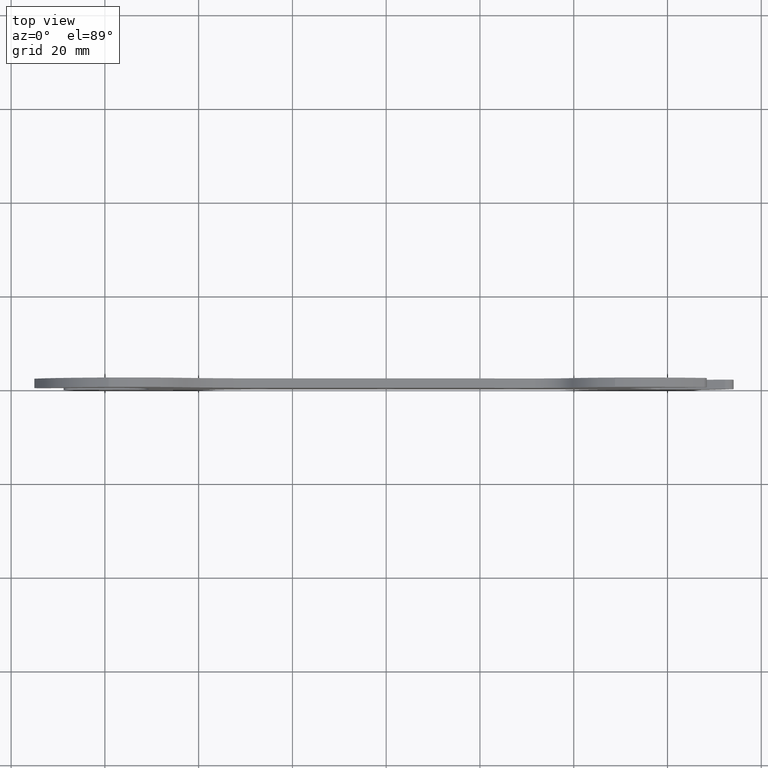
[diagram: clean part render]
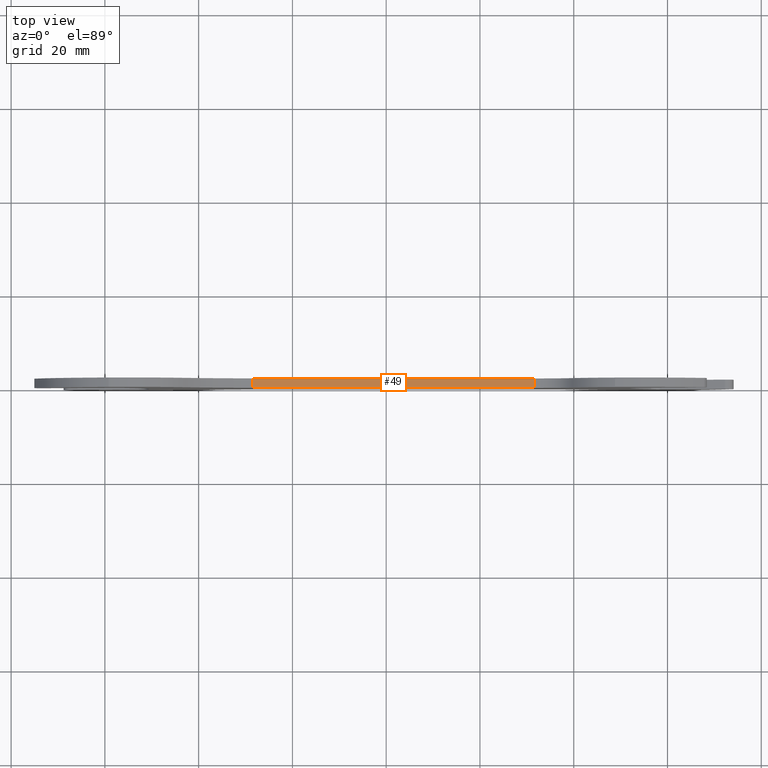
[diagram: same view with one face highlighted and labeled with its STEP entity id]
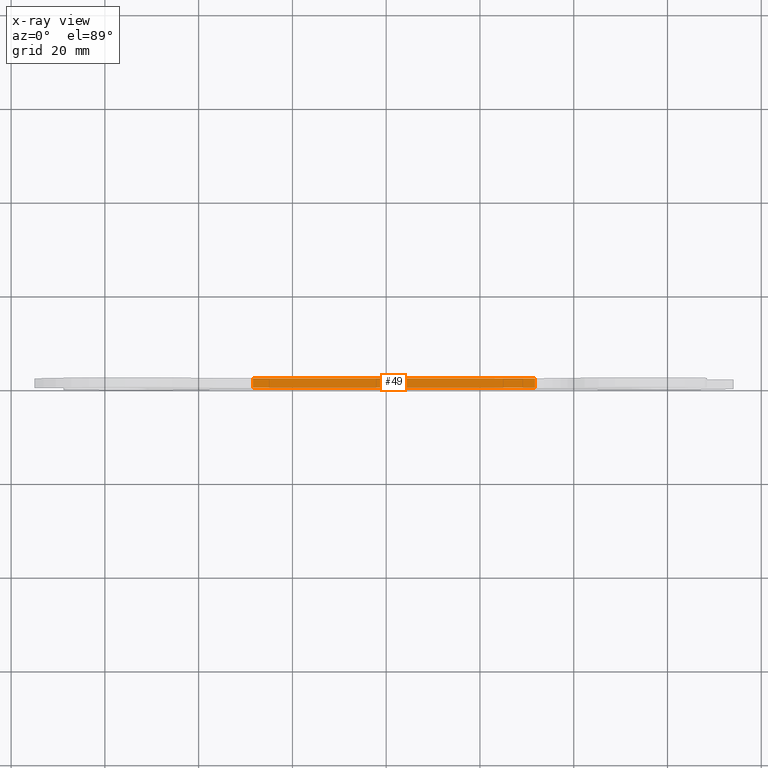
[diagram: x-ray of the same camera — body ghosted, the highlighted face saturated]
A machine part, top view. The second image highlights one B-rep face of the part: STEP entity #49.
The next image is the same camera in x-ray: the body ghosted, the highlighted face saturated — about 0% of this face is hidden behind the body in this view.
In plain terms, the highlighted planar face has unit normal (-0.0193, 0, -0.9998).
Its self-contained STEP definition (entity closure, byte-faithful):
#49=ADVANCED_FACE('',(#173),#172,.F.);
#172=PLANE('',#496);
#173=FACE_OUTER_BOUND('',#497,.T.);
#493=CARTESIAN_POINT('',(3.77268026701E+01,-2.00000000000E-01,9.78335939392E+00));
#494=DIRECTION('',(-1.93066551048E-02,0.00000000000E+00,-9.99813609164E-01));
#495=DIRECTION('',(-9.99813609164E-01,0.00000000000E+00,1.93066551048E-02));
#496=AXIS2_PLACEMENT_3D('',#493,#494,#495);
#497=EDGE_LOOP('',(#724,#725,#726,#727));
#724=ORIENTED_EDGE('',*,*,#893,.T.);
#725=ORIENTED_EDGE('',*,*,#908,.F.);
#726=ORIENTED_EDGE('',*,*,#846,.F.);
#727=ORIENTED_EDGE('',*,*,#907,.T.);
#846=EDGE_CURVE('',#1023,#1030,#1031,.T.);
#893=EDGE_CURVE('',#1358,#1351,#1359,.T.);
#907=EDGE_CURVE('',#1023,#1358,#1452,.T.);
#908=EDGE_CURVE('',#1030,#1351,#1458,.T.);
#1023=VERTEX_POINT('',#1671);
#1030=VERTEX_POINT('',#1676);
#1031=LINE('',#1677,#1678);
#1351=VERTEX_POINT('',#1896);
#1358=VERTEX_POINT('',#1901);
#1359=LINE('',#1902,#1903);
#1452=LINE('',#1963,#1964);
#1458=LINE('',#1966,#1967);
#1671=CARTESIAN_POINT('',(-2.84643007519E+01,2.00000000000E+00,1.10615264373E+01));
#1676=CARTESIAN_POINT('',(3.17094296317E+01,2.00000000000E+00,9.89955639787E+00));
#1677=CARTESIAN_POINT('',(-2.84643007519E+01,2.00000000000E+00,1.10615264373E+01));
#1678=VECTOR('',#1679,6.01849483065E+01);
#1679=DIRECTION('',(9.99813609164E-01,0.00000000000E+00,-1.93066551048E-02));
#1896=CARTESIAN_POINT('',(3.17094296317E+01,0.00000000000E+00,9.89955639787E+00));
#1901=CARTESIAN_POINT('',(-2.84643007519E+01,0.00000000000E+00,1.10615264373E+01));
#1902=CARTESIAN_POINT('',(-2.84643007519E+01,0.00000000000E+00,1.10615264373E+01));
#1903=VECTOR('',#1904,6.01849483065E+01);
#1904=DIRECTION('',(9.99813609164E-01,0.00000000000E+00,-1.93066551048E-02));
#1963=CARTESIAN_POINT('',(-2.84643007519E+01,2.00000000000E+00,1.10615264373E+01));
#1964=VECTOR('',#1965,2.00000000000E+00);
#1965=DIRECTION('',(0.00000000000E+00,-1.00000000000E+00,0.00000000000E+00));
#1966=CARTESIAN_POINT('',(3.17094296317E+01,2.00000000000E+00,9.89955639787E+00));
#1967=VECTOR('',#1968,2.00000000000E+00);
#1968=DIRECTION('',(0.00000000000E+00,-1.00000000000E+00,0.00000000000E+00));